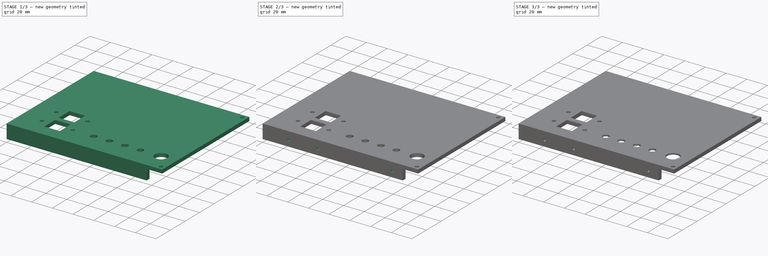
[diagram: build sequence overview — one tinted view per stage of 3, left to right]
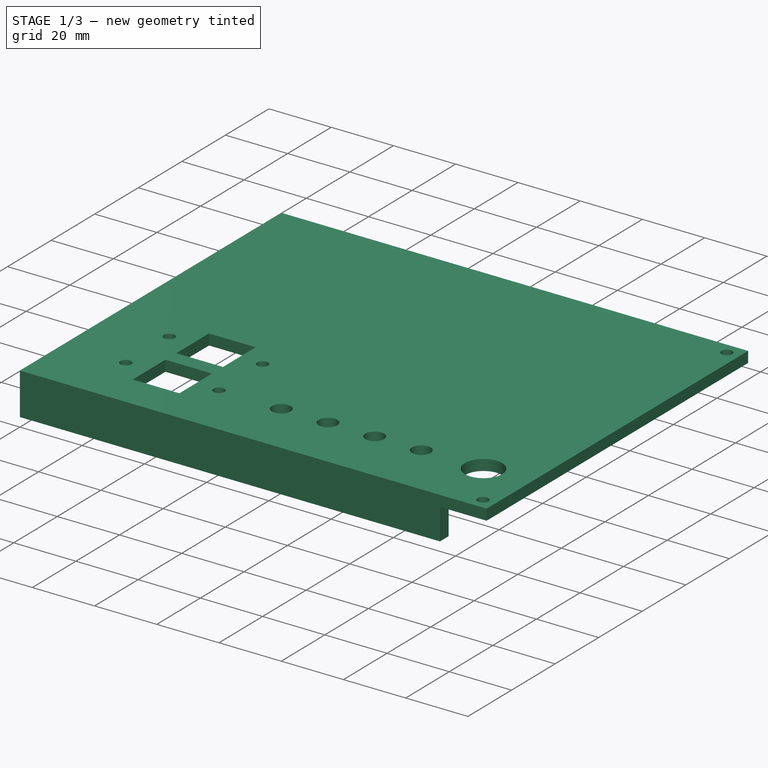
[diagram: stage 1 of 3 — iso view after this stage's code; geometry added in this stage tinted green]
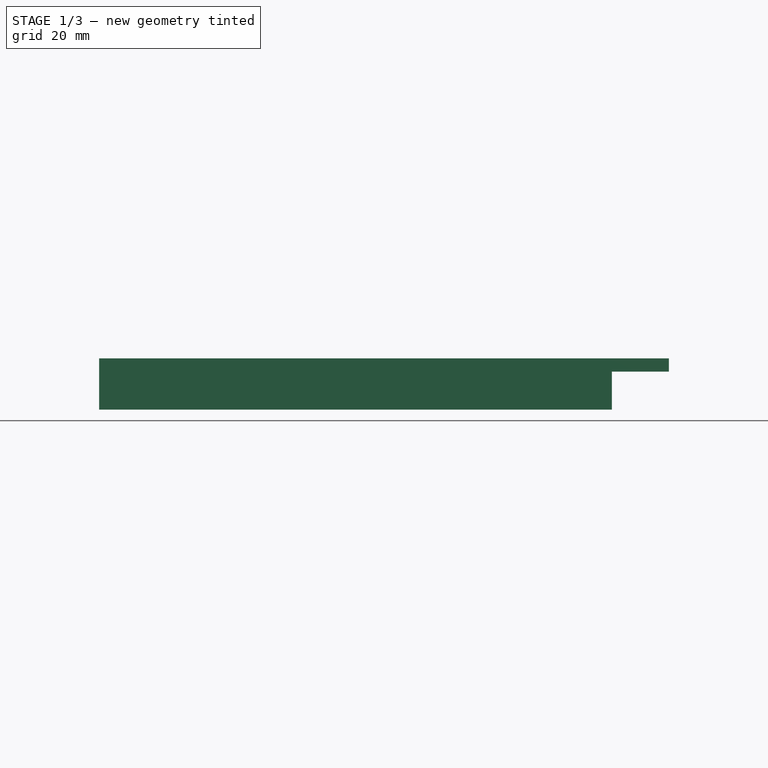
[diagram: stage 1 of 3 — front view after this stage's code; geometry added in this stage tinted green]
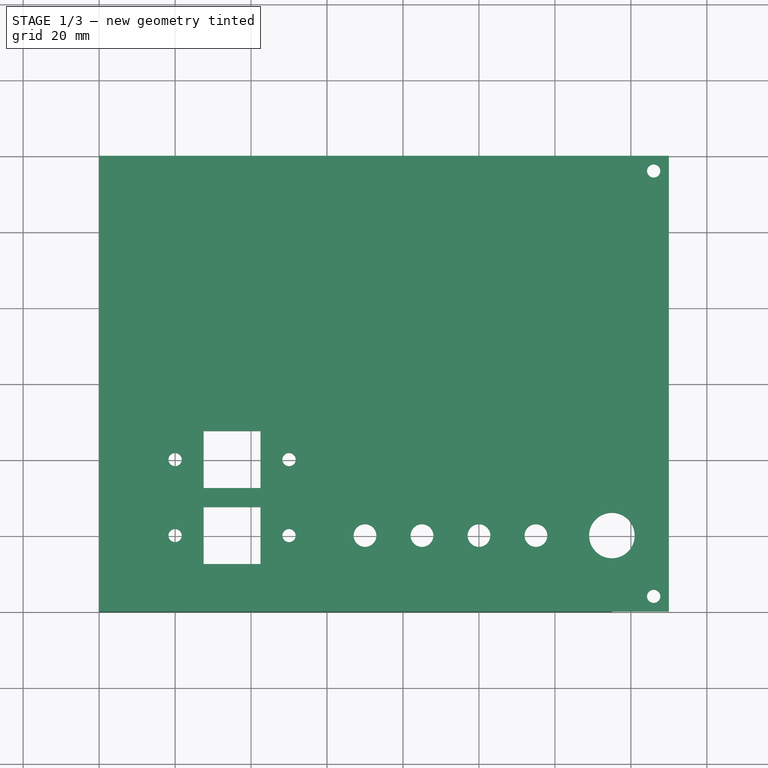
[diagram: stage 1 of 3 — top view after this stage's code; geometry added in this stage tinted green]
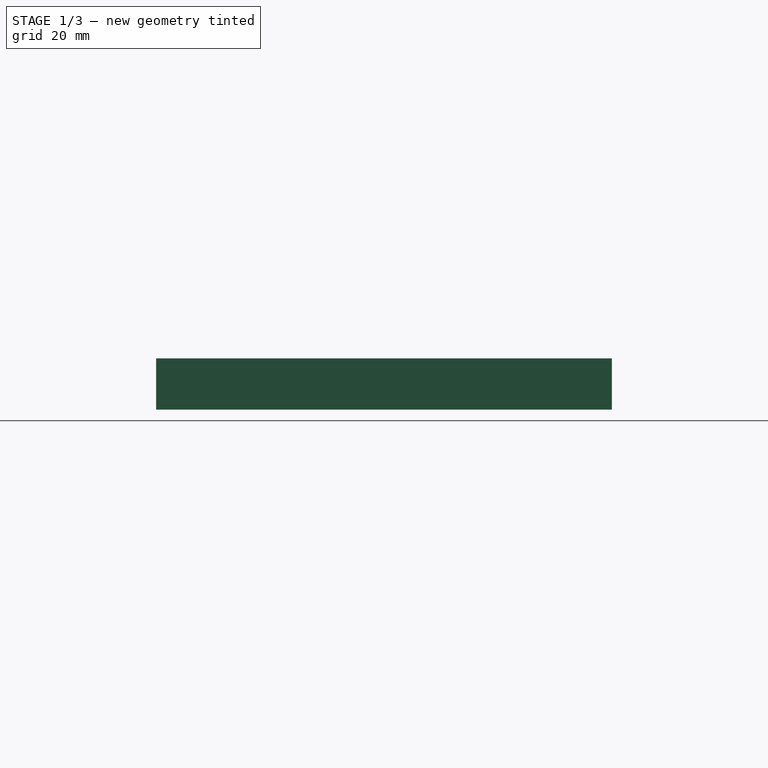
[diagram: stage 1 of 3 — right view after this stage's code; geometry added in this stage tinted green]
FCSTD DOCUMENT  (FreeCAD 0.19R24267 +99 (Git))
Label: T41 Back Left Panel  V010
License: All rights reserved
LicenseURL: http://en.wikipedia.org/wiki/All_rights_reserved
objects: Sketcher::SketchObject×5, PartDesign::Pocket×3, PartDesign::Pad×2, PartDesign::Body×1
note: 16 computed .brp shape members not serialized (recipe doc carries the construction recipe); baked Part::Feature solids carry a one-line shape summary decoded from their .brp

FEATURE [Sketcher::SketchObject] CopySketch010
  FullyConstrained = true
  MapMode = 5
  Placement = pos=(0,0,0) rot=(0,1,0;3.14159rad)
  Support = -> [XY_Plane]
  sketch-geometry (23):
    g0: LineSegment StartX=-150 StartY=60 StartZ=0 EndX=0 EndY=60 EndZ=0
    g1: LineSegment StartX=0 StartY=60 StartZ=0 EndX=0 EndY=-60 EndZ=0
    g2: LineSegment StartX=0 StartY=-60 StartZ=0 EndX=-150 EndY=-60 EndZ=0
    g3: LineSegment StartX=-150 StartY=-60 StartZ=0 EndX=-150 EndY=60 EndZ=0
    g4: Circle CenterX=-146 CenterY=56 CenterZ=0 NormalX=0 NormalY=0 NormalZ=1 AngleXU=0 Radius=1.75
    g5: Circle CenterX=-146 CenterY=-56 CenterZ=0 NormalX=0 NormalY=0 NormalZ=1 AngleXU=0 Radius=1.75
    g6: Circle CenterX=-115 CenterY=-40 CenterZ=0 NormalX=0 NormalY=0 NormalZ=1 AngleXU=0 Radius=3
    g7: Circle CenterX=-100 CenterY=-40 CenterZ=0 NormalX=0 NormalY=0 NormalZ=1 AngleXU=0 Radius=3
    g8: Circle CenterX=-85 CenterY=-40 CenterZ=0 NormalX=0 NormalY=0 NormalZ=1 AngleXU=0 Radius=3
    g9: Circle CenterX=-70 CenterY=-40 CenterZ=0 NormalX=0 NormalY=0 NormalZ=1 AngleXU=0 Radius=3
    g10: Circle CenterX=-50 CenterY=-40 CenterZ=0 NormalX=0 NormalY=0 NormalZ=1 AngleXU=0 Radius=1.75
    g11: Circle CenterX=-20 CenterY=-40 CenterZ=0 NormalX=0 NormalY=0 NormalZ=1 AngleXU=0 Radius=1.75
    g12: LineSegment StartX=-42.5 StartY=-32.5 StartZ=0 EndX=-27.5 EndY=-32.5 EndZ=0
    g13: LineSegment StartX=-27.5 StartY=-32.5 StartZ=0 EndX=-27.5 EndY=-47.5 EndZ=0
    g14: LineSegment StartX=-27.5 StartY=-47.5 StartZ=0 EndX=-42.5 EndY=-47.5 EndZ=0
    g15: LineSegment StartX=-42.5 StartY=-47.5 StartZ=0 EndX=-42.5 EndY=-32.5 EndZ=0
    g16: Circle CenterX=-50 CenterY=-20 CenterZ=0 NormalX=0 NormalY=0 NormalZ=1 AngleXU=0 Radius=1.75
    g17: Circle CenterX=-20 CenterY=-20 CenterZ=0 NormalX=0 NormalY=0 NormalZ=1 AngleXU=0 Radius=1.75
    g18: LineSegment StartX=-42.5 StartY=-12.5 StartZ=0 EndX=-27.5 EndY=-12.5 EndZ=0
    g19: LineSegment StartX=-27.5 StartY=-12.5 StartZ=0 EndX=-27.5 EndY=-27.5 EndZ=0
    g20: LineSegment StartX=-27.5 StartY=-27.5 StartZ=0 EndX=-42.5 EndY=-27.5 EndZ=0
    g21: LineSegment StartX=-42.5 StartY=-27.5 StartZ=0 EndX=-42.5 EndY=-12.5 EndZ=0
    g22: Circle CenterX=-135 CenterY=-40 CenterZ=0 NormalX=0 NormalY=0 NormalZ=1 AngleXU=0 Radius=6
  constraints (69):
    c: Coincident(g0,g1)
    c: Coincident(g1,g2)
    c: Coincident(g2,g3)
    c: Coincident(g3,g0)
    c: Horizontal(g0)
    c: Horizontal(g2)
    c: Vertical(g1)
    c: Vertical(g3)
    c: PointOnObject(g1,g-2)
    c: DistanceY(g1,g1) = 120
    c: DistanceX(g2,g2) = 150
    c: Equal(g4,g5)
    c: Diameter(g4) = 3.5
    c: DistanceY(g5,g-1) = 56
    c: DistanceX(g5,g-1) = 146
    c: DistanceX(g4,g-1) = 146
    c: DistanceY(g-1,g4) = 56
    c: DistanceY(g-1,g0) = 60
    c: Equal(g6,g7)
    c: Equal(g6,g8)
    c: Equal(g6,g9)
    c: Diameter(g6) = 6
    c: Horizontal(g6,g7)
    c: Horizontal(g7,g8)
    c: Horizontal(g8,g9)
    c: DistanceX(g6,g7) = 15
    c: DistanceX(g7,g8) = 15
    c: DistanceX(g8,g9) = 15
    c: Equal(g10,g11)
    c: Diameter(g10) = 3.5
    c: DistanceX(g10,g11) = 30
    c: Horizontal(g10,g11)
    c: Coincident(g12,g13)
    c: Coincident(g13,g14)
    c: Coincident(g14,g15)
    c: Coincident(g15,g12)
    c: Horizontal(g12)
    c: Horizontal(g14)
    c: Vertical(g13)
    c: Vertical(g15)
    c: DistanceX(g12,g12) = 15
    c: DistanceY(g13,g13) = 15
    c: DistanceX(g12,g11) = 7.5
    c: Equal(g16,g17)
    c: Diameter(g16) = 3.5
    c: DistanceX(g16,g17) = 30
    c: Horizontal(g16,g17)
    c: Coincident(g18,g19)
    c: Coincident(g19,g20)
    c: Coincident(g20,g21)
    c: Coincident(g21,g18)
    c: Horizontal(g18)
    c: Horizontal(g20)
    c: Vertical(g19)
    c: Vertical(g21)
    c: DistanceX(g18,g18) = 15
    c: DistanceY(g19,g19) = 15
    c: DistanceX(g18,g17) = 7.5
    c: DistanceY(g11,g12) = 7.5
    c: DistanceY(g17,g18) = 7.5
    c: DistanceY(g11,g-1) = 40
    c: DistanceY(g-1,g17) = -20
    c: Diameter(g22) = 12
    c: DistanceX(g22,g-1) = 135
    c: DistanceY(g22,g-1) = 40
    c: DistanceY(g6,g-1) = 40
    c: DistanceX(g22,g6) = 20
    c: DistanceX(g17,g-1) = 20
    c: Vertical(g17,g11)
FEATURE [PartDesign::Pad] Pad
  Direction = (1,1,1)
  Length = 3.5
  Length2 = 100
  Profile = -> CopySketch010
  Type = 0
FEATURE [Sketcher::SketchObject] Sketch
  FullyConstrained = true
  MapMode = 5
  Placement = pos=(0,0,-3.5) rot=(1,0,0;3.14159rad)
  Support = -> [Pad]
  sketch-geometry (8):
    g0: LineSegment StartX=135 StartY=60 StartZ=0 EndX=135 EndY=56 EndZ=0
    g1: LineSegment StartX=135 StartY=56 StartZ=0 EndX=4 EndY=56 EndZ=0
    g2: LineSegment StartX=4 StartY=56 StartZ=0 EndX=4 EndY=-56 EndZ=0
    g3: LineSegment StartX=4 StartY=-56 StartZ=0 EndX=135 EndY=-56 EndZ=0
    g4: LineSegment StartX=135 StartY=-56 StartZ=0 EndX=135 EndY=-60 EndZ=0
    g5: LineSegment StartX=135 StartY=-60 StartZ=0 EndX=0 EndY=-60 EndZ=0
    g6: LineSegment StartX=0 StartY=-60 StartZ=0 EndX=0 EndY=60 EndZ=0
    g7: LineSegment StartX=0 StartY=60 StartZ=0 EndX=135 EndY=60 EndZ=0
  constraints (24):
    c: Coincident(g0,g1)
    c: Horizontal(g1)
    c: Coincident(g1,g2)
    c: Vertical(g2)
    c: Coincident(g2,g3)
    c: Horizontal(g3)
    c: Coincident(g3,g4)
    c: Coincident(g4,g5)
    c: PointOnObject(g5,g-2)
    c: Horizontal(g5)
    c: Coincident(g5,g6)
    c: PointOnObject(g6,g-2)
    c: Coincident(g6,g7)
    c: Coincident(g7,g0)
    c: Horizontal(g7)
    c: Parallel(g0,g-2)
    c: Parallel(g4,g-2)
    c: DistanceY(g0,g0) = 4
    c: DistanceX(g7,g7) = 135
    c: DistanceX(g5,g5) = 135
    c: DistanceY(g6,g6) = 120
    c: DistanceY(g-1,g6) = 60
    c: DistanceY(g2,g2) = 112
    c: DistanceX(g-1,g1) = 4
FEATURE [PartDesign::Pad] Pad001  label="Flange"
  BaseFeature = -> Pad
  Direction = (1,1,1)
  Length = 10.01
  Length2 = 100
  Profile = -> Sketch
  Type = 0
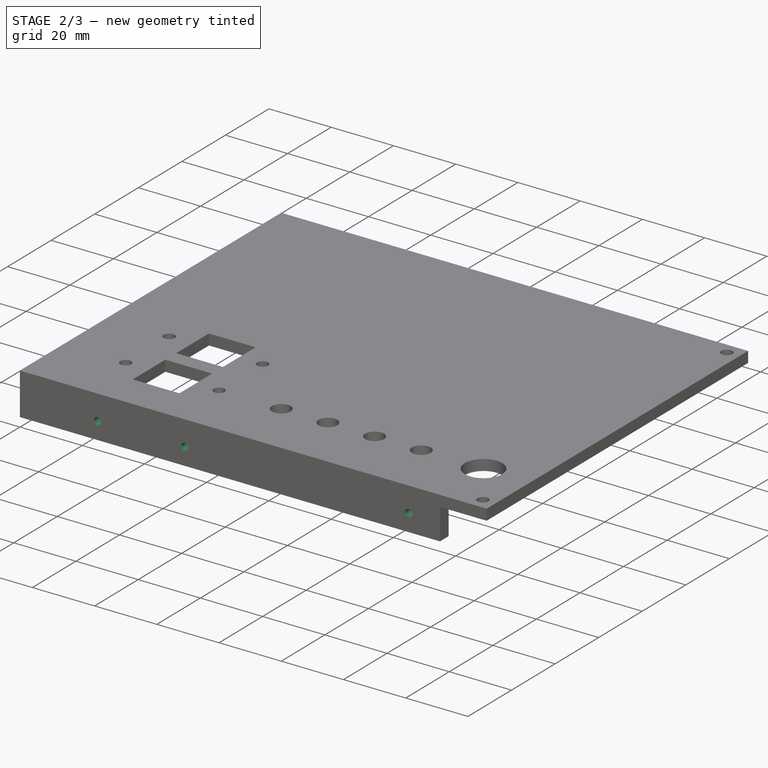
[diagram: stage 2 of 3 — iso view after this stage's code; geometry added in this stage tinted green]
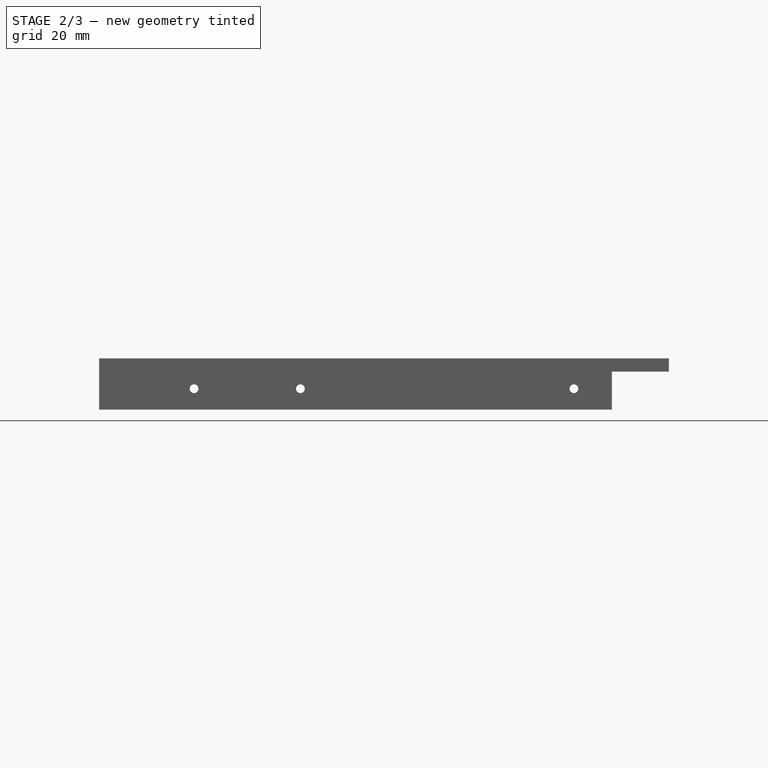
[diagram: stage 2 of 3 — front view after this stage's code; geometry added in this stage tinted green]
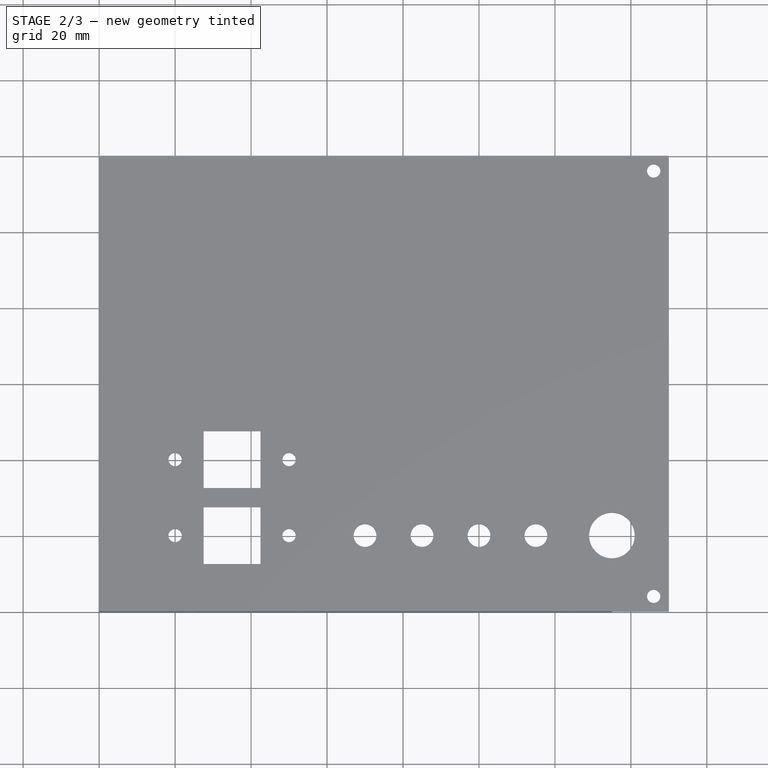
[diagram: stage 2 of 3 — top view after this stage's code; geometry added in this stage tinted green]
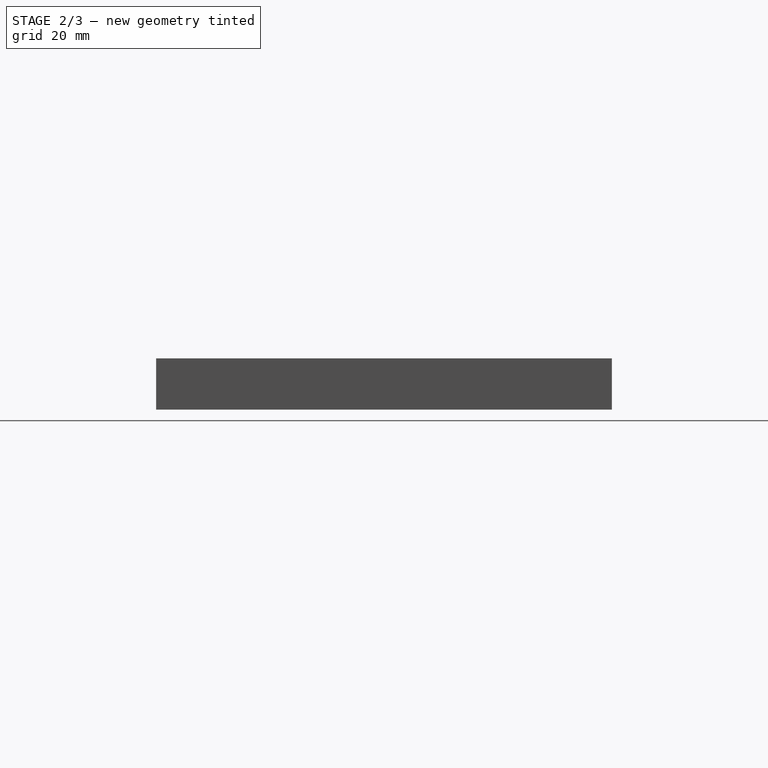
[diagram: stage 2 of 3 — right view after this stage's code; geometry added in this stage tinted green]
FEATURE [Sketcher::SketchObject] Sketch001
  FullyConstrained = true
  MapMode = 5
  Placement = pos=(0,60,0) rot=(0,0.707107,0.707107;3.14159rad)
  Support = -> [Pad001]
  sketch-geometry (3):
    g0: Circle CenterX=-25 CenterY=-8 CenterZ=0 NormalX=0 NormalY=0 NormalZ=1 AngleXU=0 Radius=1.15
    g1: Circle CenterX=-125 CenterY=-8 CenterZ=0 NormalX=0 NormalY=0 NormalZ=1 AngleXU=0 Radius=1.15
    g2: Circle CenterX=-53 CenterY=-8 CenterZ=0 NormalX=0 NormalY=0 NormalZ=1 AngleXU=0 Radius=1.15
  constraints (9):
    c: Equal(g1,g0)
    c: Diameter(g1) = 2.3
    c: Horizontal(g1,g0)
    c: DistanceY(g0,g-1) = 8
    c: DistanceX(g0,g-1) = 25
    c: DistanceX(g1,g-1) = 125
    c: DistanceX(g2,g-1) = 53
    c: DistanceY(g2,g-1) = 8
    c: Diameter(g2) = 2.3
FEATURE [PartDesign::Pocket] Pocket  label="Top bottom holes"
  BaseFeature = -> Pad001
  Length = 225.01
  Length2 = 100
  Profile = -> Sketch001
  Type = 0
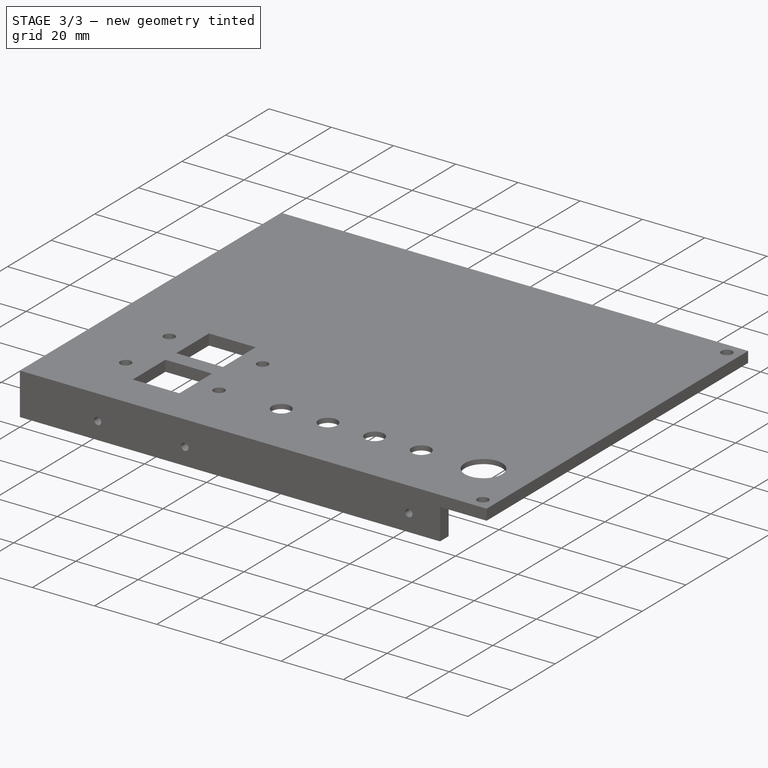
[diagram: stage 3 of 3 — iso view after this stage's code; geometry added in this stage tinted green]
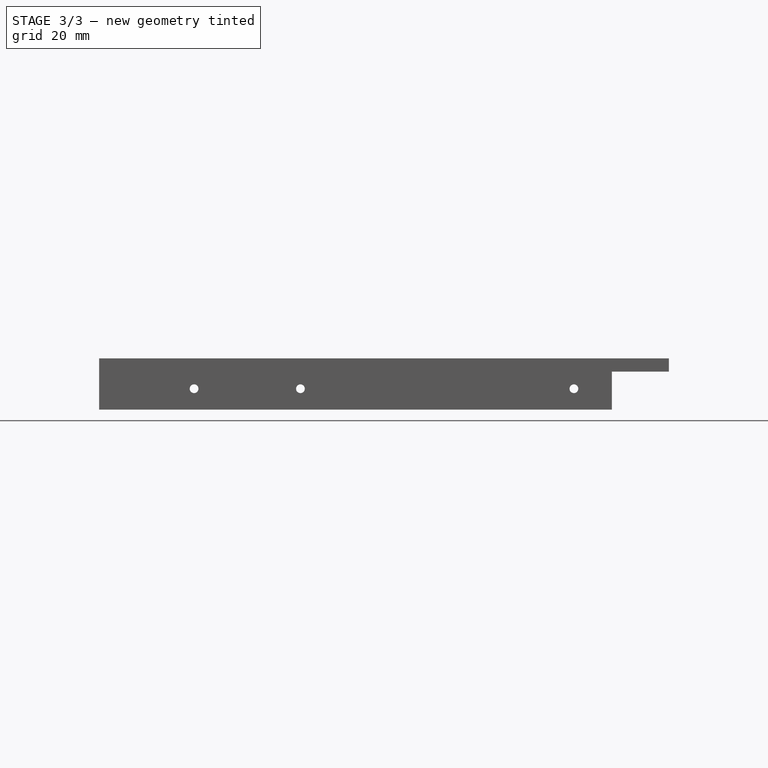
[diagram: stage 3 of 3 — front view after this stage's code; geometry added in this stage tinted green]
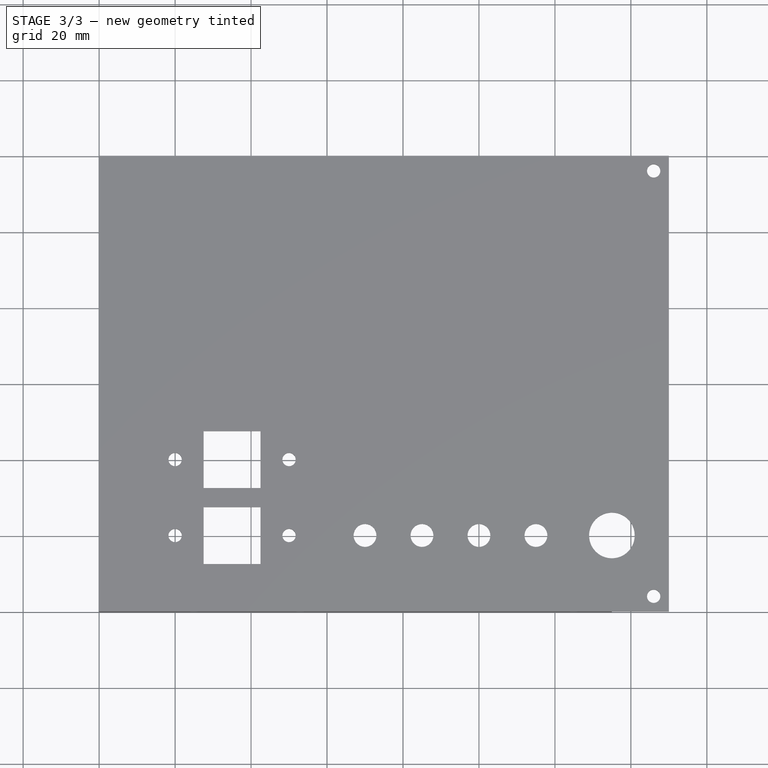
[diagram: stage 3 of 3 — top view after this stage's code; geometry added in this stage tinted green]
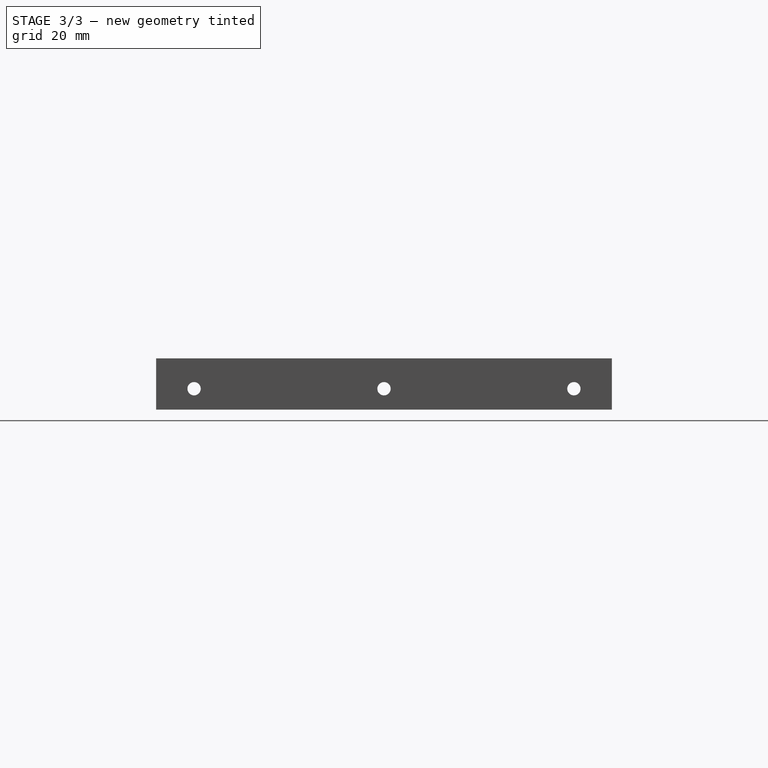
[diagram: stage 3 of 3 — right view after this stage's code; geometry added in this stage tinted green]
FEATURE [Sketcher::SketchObject] Sketch002
  FullyConstrained = true
  MapMode = 5
  Placement = pos=(0,0,0) rot=(0.57735,-0.57735,-0.57735;2.0944rad)
  Support = -> [Pocket]
  sketch-geometry (3):
    g0: Circle CenterX=50 CenterY=-8 CenterZ=0 NormalX=0 NormalY=0 NormalZ=1 AngleXU=0 Radius=1.75
    g1: Circle CenterX=-50 CenterY=-8 CenterZ=0 NormalX=0 NormalY=0 NormalZ=1 AngleXU=0 Radius=1.75
    g2: Circle CenterX=0 CenterY=-8 CenterZ=0 NormalX=0 NormalY=0 NormalZ=1 AngleXU=0 Radius=1.75
  constraints (9):
    c: Equal(g0,g1)
    c: Diameter(g0) = 3.5
    c: Horizontal(g0,g1)
    c: DistanceY(g0,g-1) = 8
    c: Diameter(g2) = 3.5
    c: Horizontal(g0,g2)
    c: DistanceX(g2,g-1) = 0
    c: DistanceX(g0) = 50
    c: DistanceX(g1,g-1) = 50
FEATURE [PartDesign::Pocket] Pocket001  label="Center holes"
  BaseFeature = -> Pocket
  Length = 5.01
  Length2 = 100
  Profile = -> Sketch002
  Type = 0
FEATURE [Sketcher::SketchObject] Sketch003
  FullyConstrained = true
  MapMode = 5
  Placement = pos=(0,0,-3.5) rot=(1,0,0;3.14159rad)
  Support = -> [Pocket001]
  sketch-geometry (4):
    g0: LineSegment StartX=60 StartY=50 StartZ=0 EndX=145 EndY=50 EndZ=0
    g1: LineSegment StartX=145 StartY=50 StartZ=0 EndX=145 EndY=30 EndZ=0
    g2: LineSegment StartX=145 StartY=30 StartZ=0 EndX=60 EndY=30 EndZ=0
    g3: LineSegment StartX=60 StartY=30 StartZ=0 EndX=60 EndY=50 EndZ=0
  constraints (12):
    c: Coincident(g0,g1)
    c: Coincident(g1,g2)
    c: Coincident(g2,g3)
    c: Coincident(g3,g0)
    c: Horizontal(g0)
    c: Horizontal(g2)
    c: Vertical(g1)
    c: Vertical(g3)
    c: DistanceX(g-1,g0) = 60
    c: DistanceY(g3,g3) = 20
    c: DistanceX(g0,g0) = 85
    c: DistanceY(g-1,g2) = 30
FEATURE [PartDesign::Pocket] Pocket002
  BaseFeature = -> Pocket001
  Length = 2
  Length2 = 100
  Profile = -> Sketch003
  Type = 0
FEATURE [PartDesign::Body] Body  label="Back Panel  L"
  Group = -> [CopySketch010,Pad,Sketch,Pad001,Sketch001,Pocket,Sketch002,Pocket001,Sketch003,Pocket002]
  Origin = -> Origin
  Tip = -> Pocket002
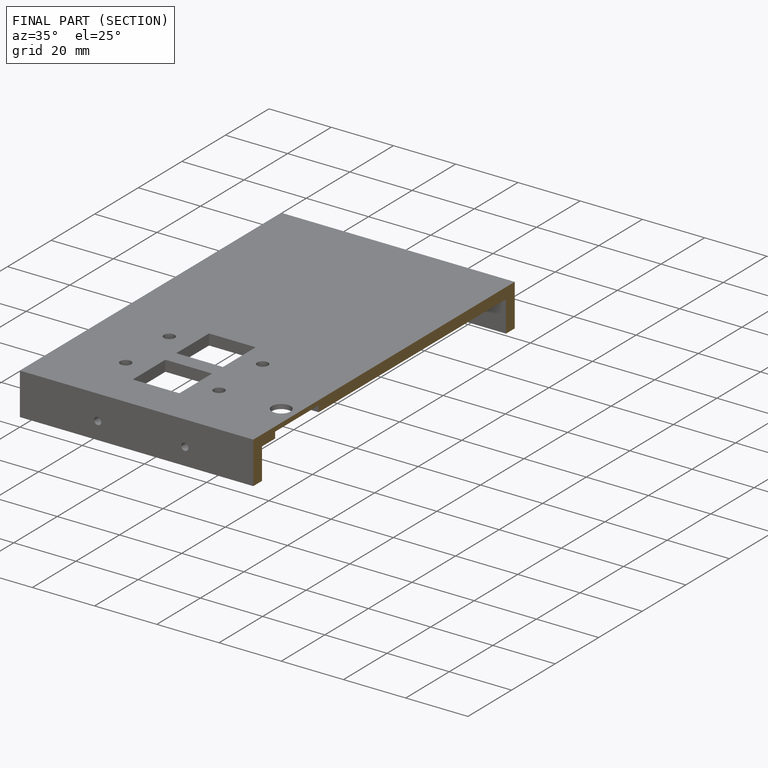
[diagram: finished part — half-section view (interior)]
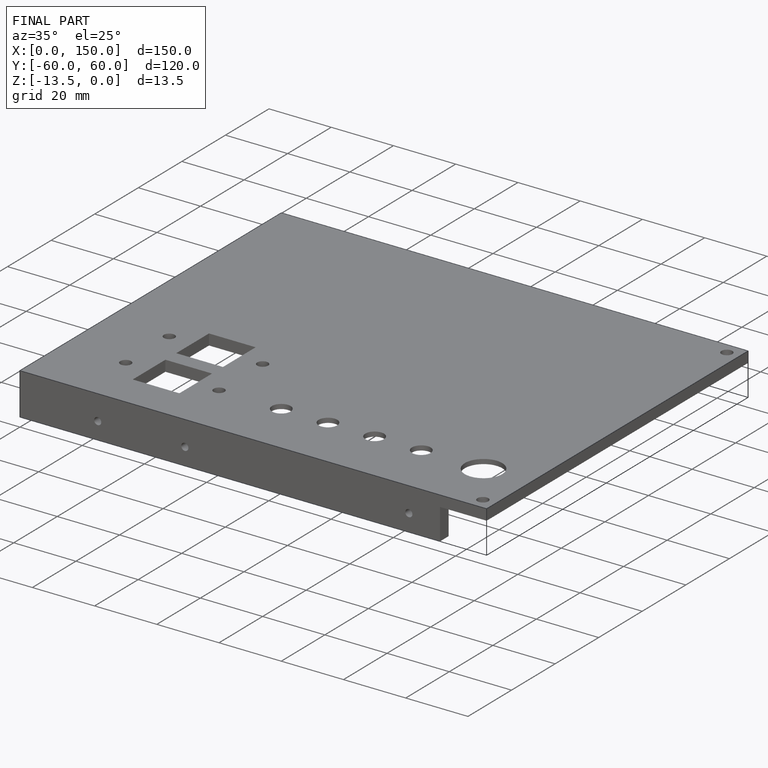
[diagram: finished part — iso view with bounding-box wireframe]
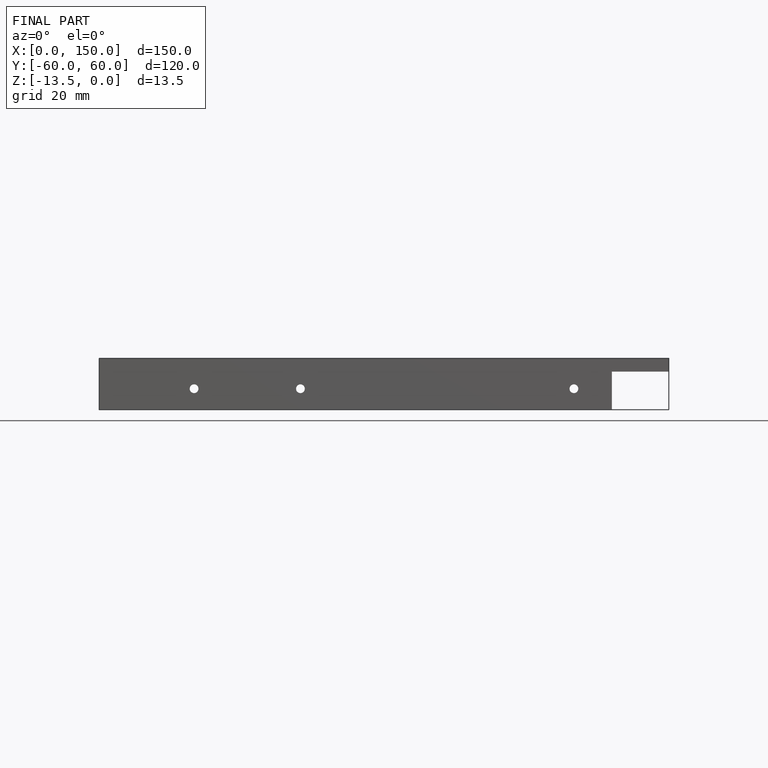
[diagram: finished part — front view with bounding-box wireframe]
